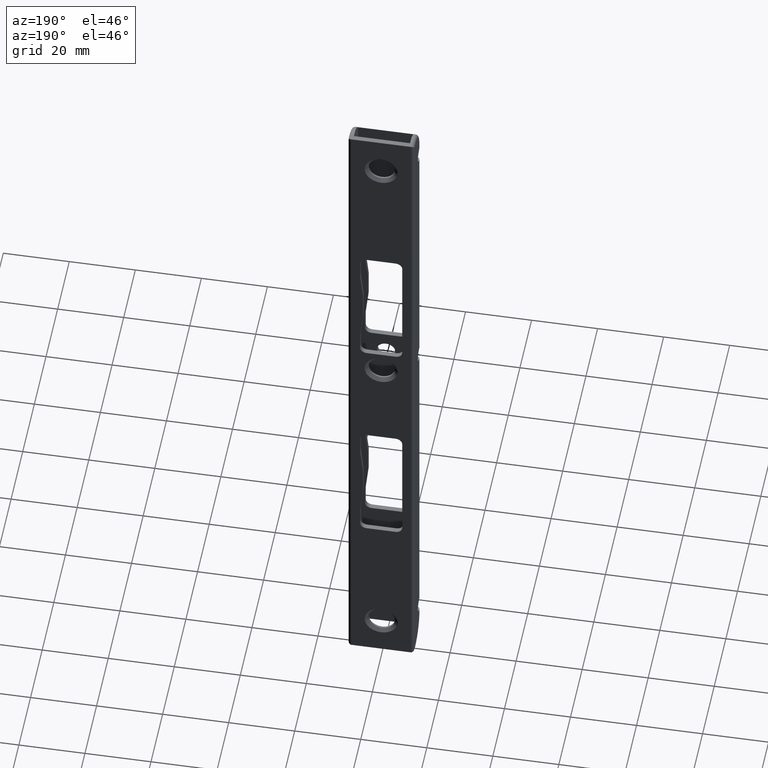
[diagram: clean part render]
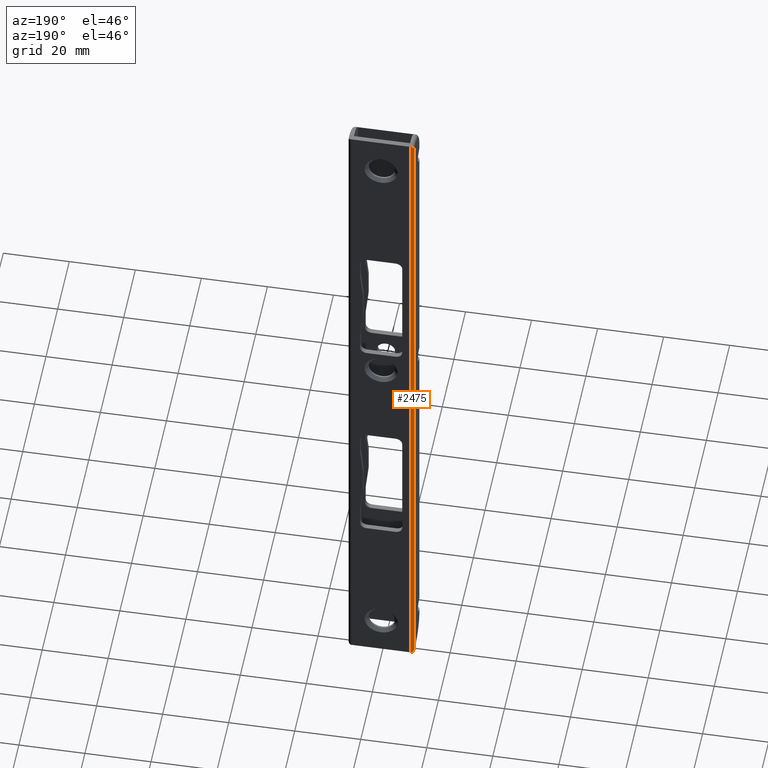
[diagram: same view with one face highlighted and labeled with its STEP entity id]
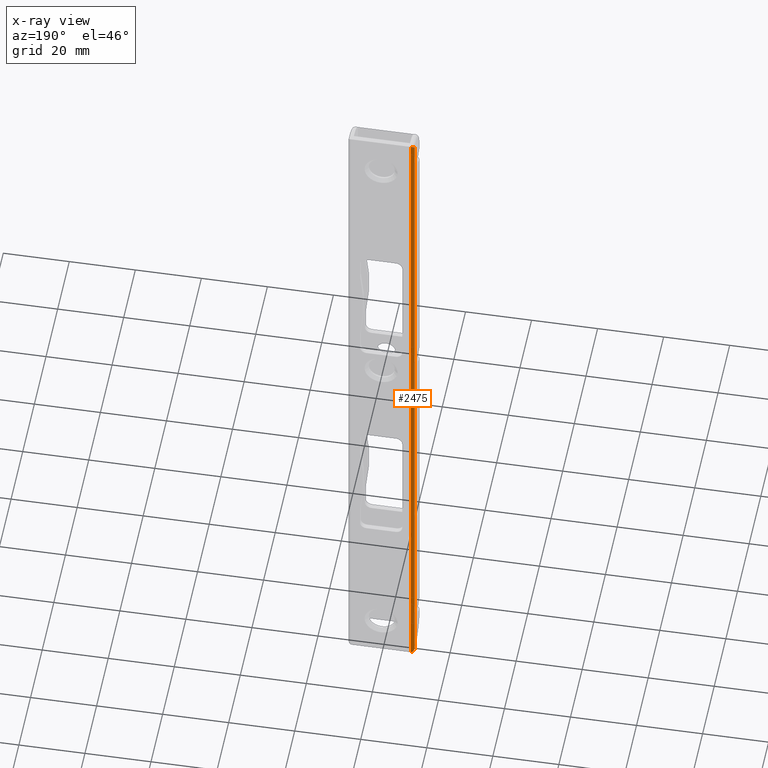
[diagram: x-ray of the same camera — body ghosted, the highlighted face saturated]
A machine part, auxiliary view. The second image highlights one B-rep face of the part: STEP entity #2475.
The next image is the same camera in x-ray: the body ghosted, the highlighted face saturated — about 0% of this face is hidden behind the body in this view.
In plain terms, the highlighted cylindrical surface (edge-blend (fillet) strip) has radius 1 mm, axis along (0, 0, -1).
Its self-contained STEP definition (entity closure, byte-faithful):
#136 = CARTESIAN_POINT ( 'NONE',  ( -10.00000000000000178, 4.000000000000000888, -107.5000000000000000 ) ) ;
#196 = FACE_OUTER_BOUND ( 'NONE', #2059, .T. ) ;
#239 = VERTEX_POINT ( 'NONE', #583 ) ;
#245 =( BOUNDED_CURVE ( )  B_SPLINE_CURVE ( 3, ( #1043, #2517, #1798, #2041 ),
 .UNSPECIFIED., .F., .T. ) 
 B_SPLINE_CURVE_WITH_KNOTS ( ( 4, 4 ),
 ( 3.141592653589793116, 4.712388980384689674 ),
 .UNSPECIFIED. ) 
 CURVE ( )  GEOMETRIC_REPRESENTATION_ITEM ( )  RATIONAL_B_SPLINE_CURVE ( ( 1.000000000000000000, 0.8047378541243649375, 0.8047378541243649375, 1.000000000000000000 ) ) 
 REPRESENTATION_ITEM ( '' )  );
#535 = CYLINDRICAL_SURFACE ( 'NONE', #2555, 1.000000000000000888 ) ;
#551 = DIRECTION ( 'NONE',  ( -0.000000000000000000, -0.000000000000000000, 1.000000000000000000 ) ) ;
#577 = LINE ( 'NONE', #2784, #2197 ) ;
#583 = CARTESIAN_POINT ( 'NONE',  ( -9.000000000000001776, 5.000000000000000888, 108.5000000000000000 ) ) ;
#722 =( BOUNDED_CURVE ( )  B_SPLINE_CURVE ( 3, ( #3146, #2400, #1188, #2207 ),
 .UNSPECIFIED., .F., .T. ) 
 B_SPLINE_CURVE_WITH_KNOTS ( ( 4, 4 ),
 ( 0.000000000000000000, 1.570796326794896558 ),
 .UNSPECIFIED. ) 
 CURVE ( )  GEOMETRIC_REPRESENTATION_ITEM ( )  RATIONAL_B_SPLINE_CURVE ( ( 1.000000000000000000, 0.8047378541243649375, 0.8047378541243649375, 1.000000000000000000 ) ) 
 REPRESENTATION_ITEM ( '' )  );
#936 = ORIENTED_EDGE ( 'NONE', *, *, #2843, .F. ) ;
#966 = VERTEX_POINT ( 'NONE', #1440 ) ;
#1043 = CARTESIAN_POINT ( 'NONE',  ( -9.000000000000001776, 5.000000000000000888, 108.5000000000000000 ) ) ;
#1188 = CARTESIAN_POINT ( 'NONE',  ( -10.00000000000000000, 4.585786437626905965, -108.0857864376268935 ) ) ;
#1343 = EDGE_CURVE ( 'NONE', #1509, #1819, #722, .T. ) ;
#1440 = CARTESIAN_POINT ( 'NONE',  ( -10.00000000000000178, 4.000000000000000888, 107.5000000000000000 ) ) ;
#1509 = VERTEX_POINT ( 'NONE', #2766 ) ;
#1534 = EDGE_CURVE ( 'NONE', #1509, #239, #577, .T. ) ;
#1777 = EDGE_CURVE ( 'NONE', #966, #1819, #1833, .T. ) ;
#1798 = CARTESIAN_POINT ( 'NONE',  ( -10.00000000000000000, 4.585786437626905965, 108.0857864376268935 ) ) ;
#1819 = VERTEX_POINT ( 'NONE', #136 ) ;
#1833 = LINE ( 'NONE', #2330, #2244 ) ;
#1960 = DIRECTION ( 'NONE',  ( 0.000000000000000000, 0.000000000000000000, -1.000000000000000000 ) ) ;
#2041 = CARTESIAN_POINT ( 'NONE',  ( -10.00000000000000178, 4.000000000000000888, 107.5000000000000000 ) ) ;
#2048 = ORIENTED_EDGE ( 'NONE', *, *, #1777, .F. ) ;
#2059 = EDGE_LOOP ( 'NONE', ( #2428, #2048, #936, #3220 ) ) ;
#2181 = CARTESIAN_POINT ( 'NONE',  ( -9.000000000000001776, 4.000000000000000888, 108.5000000000000000 ) ) ;
#2197 = VECTOR ( 'NONE', #551, 1000.000000000000000 ) ;
#2207 = CARTESIAN_POINT ( 'NONE',  ( -10.00000000000000178, 4.000000000000000888, -107.5000000000000000 ) ) ;
#2244 = VECTOR ( 'NONE', #3099, 1000.000000000000000 ) ;
#2330 = CARTESIAN_POINT ( 'NONE',  ( -10.00000000000000178, 4.000000000000000888, 108.5000000000000000 ) ) ;
#2400 = CARTESIAN_POINT ( 'NONE',  ( -9.585786437626905965, 5.000000000000000888, -108.5000000000000000 ) ) ;
#2428 = ORIENTED_EDGE ( 'NONE', *, *, #1343, .T. ) ;
#2475 = ADVANCED_FACE ( 'NONE', ( #196 ), #535, .T. ) ;
#2517 = CARTESIAN_POINT ( 'NONE',  ( -9.585786437626905965, 5.000000000000000888, 108.5000000000000000 ) ) ;
#2555 = AXIS2_PLACEMENT_3D ( 'NONE', #2181, #1960, #3215 ) ;
#2766 = CARTESIAN_POINT ( 'NONE',  ( -9.000000000000001776, 5.000000000000000888, -108.5000000000000000 ) ) ;
#2784 = CARTESIAN_POINT ( 'NONE',  ( -9.000000000000001776, 5.000000000000000888, 108.5000000000000000 ) ) ;
#2843 = EDGE_CURVE ( 'NONE', #239, #966, #245, .T. ) ;
#3099 = DIRECTION ( 'NONE',  ( 0.000000000000000000, 0.000000000000000000, -1.000000000000000000 ) ) ;
#3146 = CARTESIAN_POINT ( 'NONE',  ( -9.000000000000001776, 5.000000000000000888, -108.5000000000000000 ) ) ;
#3215 = DIRECTION ( 'NONE',  ( -1.000000000000000000, 0.000000000000000000, 0.000000000000000000 ) ) ;
#3220 = ORIENTED_EDGE ( 'NONE', *, *, #1534, .F. ) ;